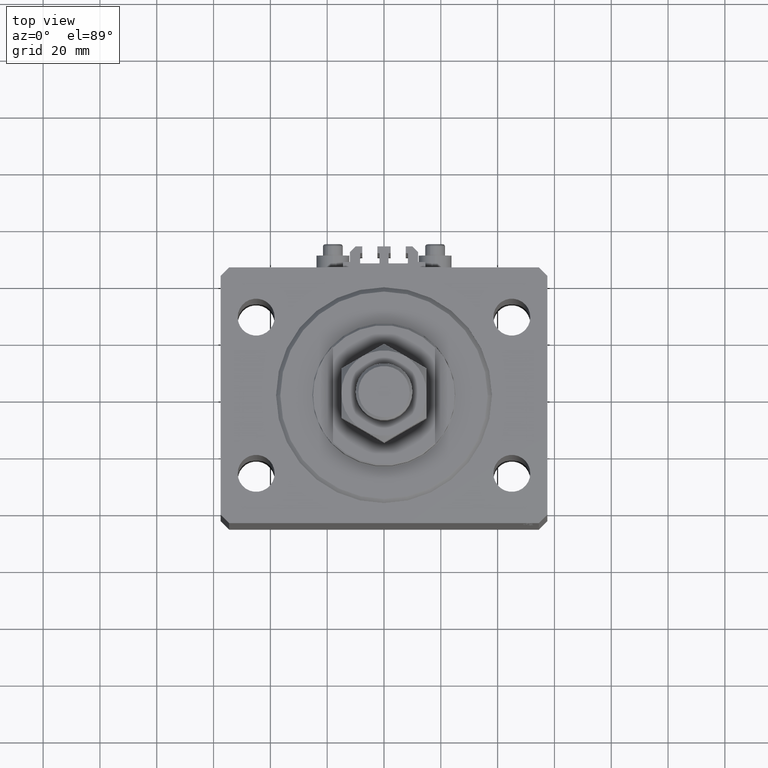
[diagram: clean part render]
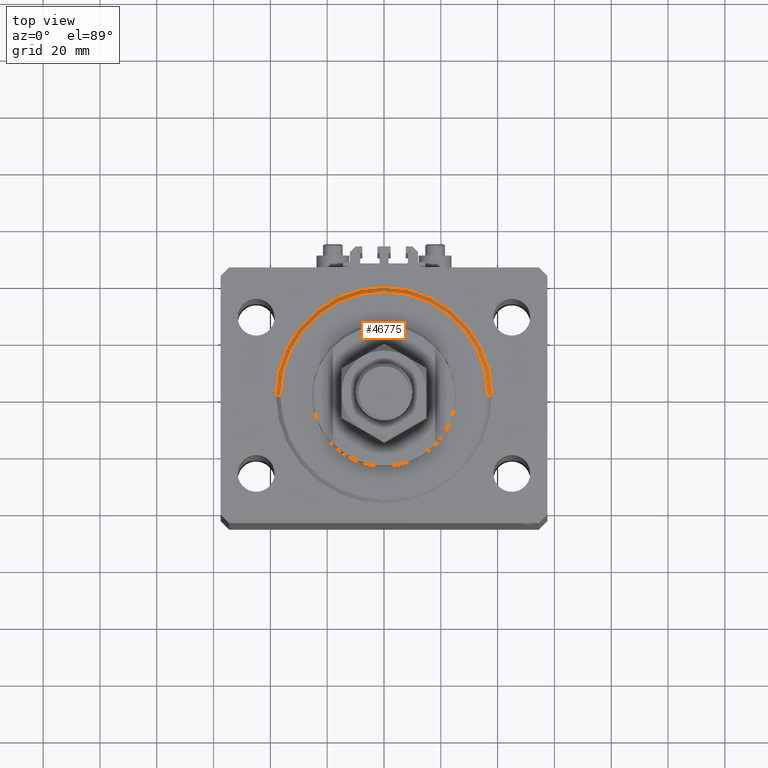
[diagram: same view with one face highlighted and labeled with its STEP entity id]
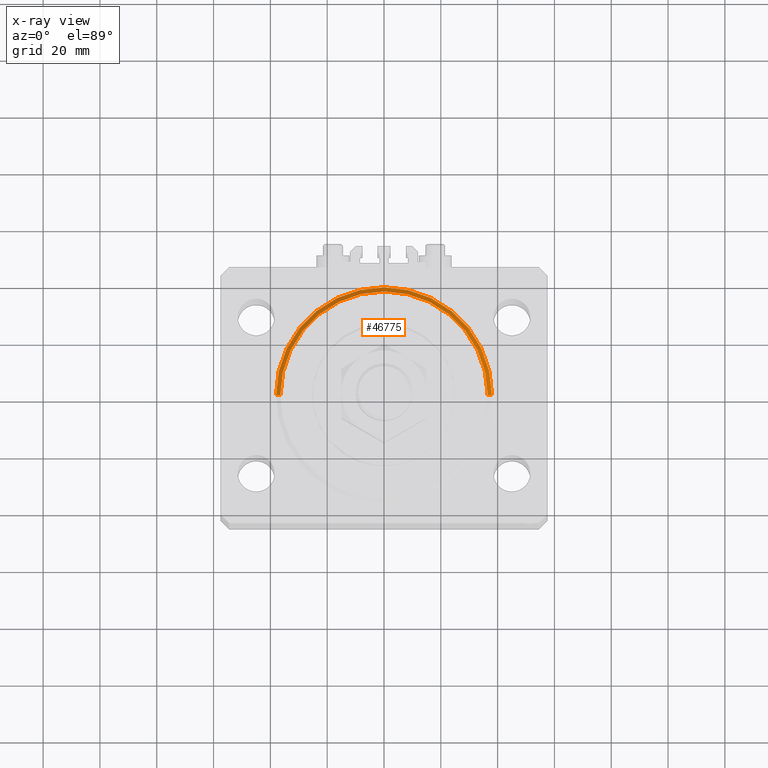
[diagram: x-ray of the same camera — body ghosted, the highlighted face saturated]
A machine part, top view. The second image highlights one B-rep face of the part: STEP entity #46775.
The next image is the same camera in x-ray: the body ghosted, the highlighted face saturated — about 0% of this face is hidden behind the body in this view.
In plain terms, the highlighted conical surface has half-angle 45 deg.
Its self-contained STEP definition (entity closure, byte-faithful):
#175 = CARTESIAN_POINT ( 'NONE',  ( 38.00000000000000000, 0.000000000000000000, 1.499999999999994449 ) ) ;
#1198 = VERTEX_POINT ( 'NONE', #26910 ) ;
#2510 = FACE_OUTER_BOUND ( 'NONE', #43941, .T. ) ;
#4340 = AXIS2_PLACEMENT_3D ( 'NONE', #37872, #44792, #26011 ) ;
#4543 = CARTESIAN_POINT ( 'NONE',  ( -38.00000000000000000, 0.000000000000000000, 1.499999999999994449 ) ) ;
#5490 = CONICAL_SURFACE ( 'NONE', #29303, 38.00000000000000000, 0.7853981633974506105 ) ;
#6012 = CARTESIAN_POINT ( 'NONE',  ( 0.000000000000000000, 0.000000000000000000, 1.499999999999994449 ) ) ;
#7790 = AXIS2_PLACEMENT_3D ( 'NONE', #15711, #38720, #31305 ) ;
#7997 = EDGE_CURVE ( 'NONE', #36857, #1198, #25151, .T. ) ;
#9837 = LINE ( 'NONE', #16785, #26557 ) ;
#15711 = CARTESIAN_POINT ( 'NONE',  ( 0.000000000000000000, 0.000000000000000000, 0.000000000000000000 ) ) ;
#16652 = CARTESIAN_POINT ( 'NONE',  ( 38.00000000000000000, 4.653657836759941941E-15, 1.499999999999994449 ) ) ;
#16785 = CARTESIAN_POINT ( 'NONE',  ( -38.00000000000000000, 4.653657836759941941E-15, 1.499999999999994449 ) ) ;
#17782 = CIRCLE ( 'NONE', #4340, 38.00000000000000000 ) ;
#18102 = DIRECTION ( 'NONE',  ( -0.000000000000000000, -0.000000000000000000, 1.000000000000000000 ) ) ;
#18495 = LINE ( 'NONE', #175, #47786 ) ;
#22541 = ORIENTED_EDGE ( 'NONE', *, *, #29036, .F. ) ;
#22707 = DIRECTION ( 'NONE',  ( 0.7071067811865491270, 0.000000000000000000, 0.7071067811865459074 ) ) ;
#23537 = ORIENTED_EDGE ( 'NONE', *, *, #28599, .F. ) ;
#25151 = CIRCLE ( 'NONE', #7790, 36.50000000000000000 ) ;
#25442 = ORIENTED_EDGE ( 'NONE', *, *, #26360, .T. ) ;
#25793 = VERTEX_POINT ( 'NONE', #4543 ) ;
#26011 = DIRECTION ( 'NONE',  ( 1.000000000000000000, 0.000000000000000000, 0.000000000000000000 ) ) ;
#26360 = EDGE_CURVE ( 'NONE', #36857, #25793, #9837, .T. ) ;
#26557 = VECTOR ( 'NONE', #32365, 1000.000000000000114 ) ;
#26910 = CARTESIAN_POINT ( 'NONE',  ( 36.50000000000000000, 0.000000000000000000, 0.000000000000000000 ) ) ;
#28599 = EDGE_CURVE ( 'NONE', #1198, #32709, #18495, .T. ) ;
#29036 = EDGE_CURVE ( 'NONE', #32709, #25793, #17782, .T. ) ;
#29258 = DIRECTION ( 'NONE',  ( 1.000000000000000000, 0.000000000000000000, 0.000000000000000000 ) ) ;
#29303 = AXIS2_PLACEMENT_3D ( 'NONE', #6012, #18102, #29258 ) ;
#30934 = CARTESIAN_POINT ( 'NONE',  ( -36.50000000000000000, 4.561809326823889791E-15, 0.000000000000000000 ) ) ;
#31305 = DIRECTION ( 'NONE',  ( 1.000000000000000000, 0.000000000000000000, 0.000000000000000000 ) ) ;
#32365 = DIRECTION ( 'NONE',  ( -0.7071067811865491270, 8.659560562354953812E-17, 0.7071067811865459074 ) ) ;
#32709 = VERTEX_POINT ( 'NONE', #16652 ) ;
#36095 = ORIENTED_EDGE ( 'NONE', *, *, #7997, .F. ) ;
#36857 = VERTEX_POINT ( 'NONE', #30934 ) ;
#37872 = CARTESIAN_POINT ( 'NONE',  ( 0.000000000000000000, 0.000000000000000000, 1.499999999999994449 ) ) ;
#38720 = DIRECTION ( 'NONE',  ( -0.000000000000000000, -0.000000000000000000, -1.000000000000000000 ) ) ;
#43941 = EDGE_LOOP ( 'NONE', ( #36095, #25442, #22541, #23537 ) ) ;
#44792 = DIRECTION ( 'NONE',  ( -0.000000000000000000, -0.000000000000000000, 1.000000000000000000 ) ) ;
#46775 = ADVANCED_FACE ( 'NONE', ( #2510 ), #5490, .T. ) ;
#47786 = VECTOR ( 'NONE', #22707, 1000.000000000000114 ) ;